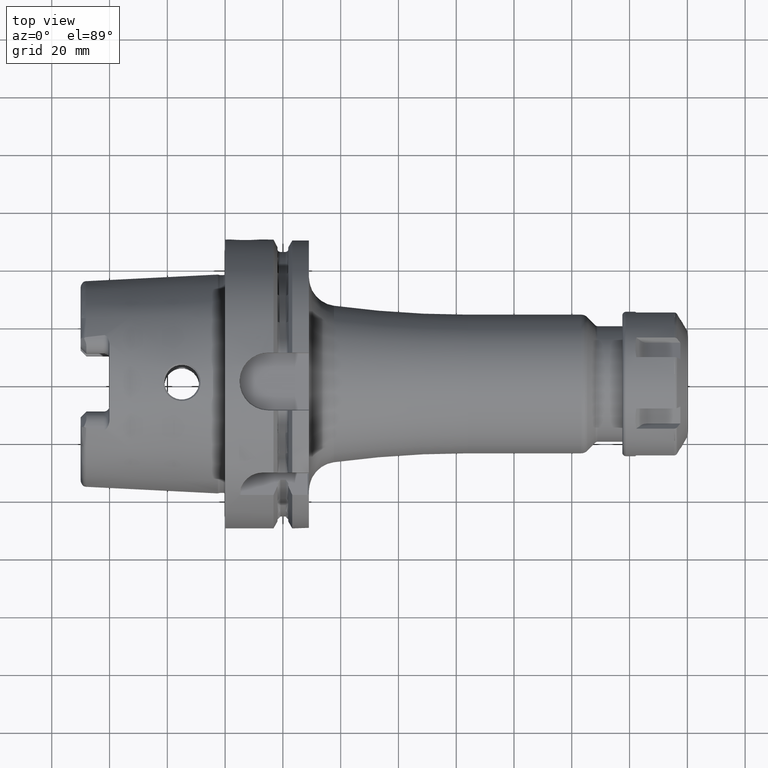
[diagram: clean part render]
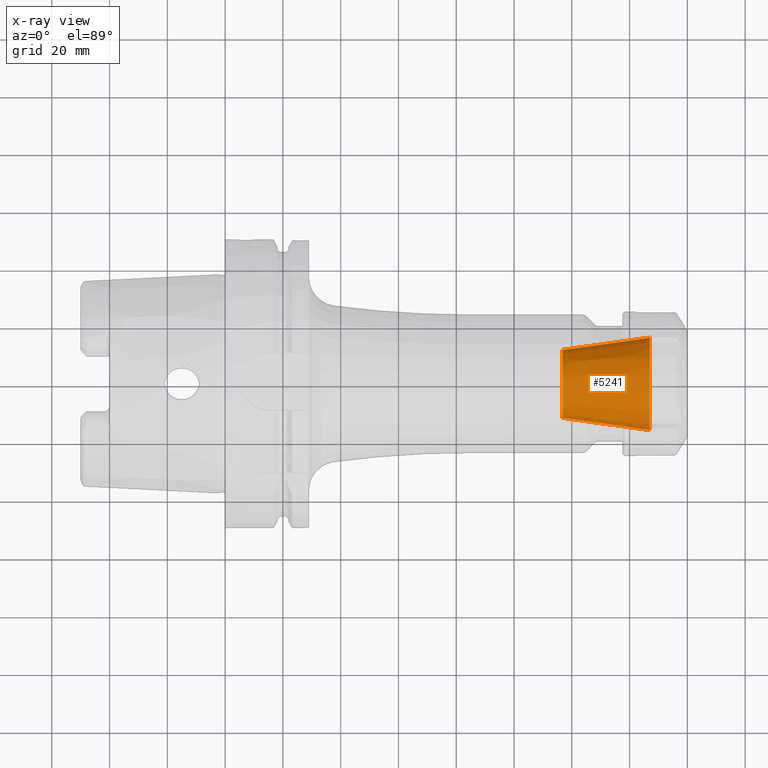
[diagram: x-ray — body ghosted, one internal face saturated and labeled with its STEP entity id]
A machine part, top view, then the same camera in x-ray: the body is ghosted and one INTERNAL B-rep face — a face not visible from any outside direction — is saturated and labeled: STEP entity #5241.
In plain terms, the highlighted conical surface has half-angle 8 deg.
Its self-contained STEP definition (entity closure, byte-faithful):
#1916=CARTESIAN_POINT('',(1.47E2,0.E0,0.E0));
#1917=DIRECTION('',(1.E0,0.E0,0.E0));
#1918=DIRECTION('',(0.E0,1.E0,0.E0));
#1919=AXIS2_PLACEMENT_3D('',#1916,#1917,#1918);
#1926=DIRECTION('',(-9.902680687416E-1,1.391731009601E-1,0.E0));
#1927=VECTOR('',#1926,3.053751027089E1);
#1928=CARTESIAN_POINT('',(1.47E2,-1.6E1,0.E0));
#1929=LINE('',#1928,#1927);
#1930=DIRECTION('',(-9.902680687416E-1,-1.391731009601E-1,0.E0));
#1931=VECTOR('',#1930,3.053751027089E1);
#1932=CARTESIAN_POINT('',(1.47E2,1.6E1,0.E0));
#1933=LINE('',#1932,#1931);
#1947=CARTESIAN_POINT('',(1.167596786799E2,0.E0,0.E0));
#1948=DIRECTION('',(1.E0,0.E0,0.E0));
#1949=DIRECTION('',(0.E0,1.E0,0.E0));
#1950=AXIS2_PLACEMENT_3D('',#1947,#1948,#1949);
#3208=CARTESIAN_POINT('',(1.167596786799E2,1.175E1,0.E0));
#3210=VERTEX_POINT('',#3208);
#3212=CARTESIAN_POINT('',(1.167596786799E2,-1.175E1,0.E0));
#3214=VERTEX_POINT('',#3212);
#3236=CARTESIAN_POINT('',(1.47E2,1.6E1,0.E0));
#3237=CARTESIAN_POINT('',(1.47E2,-1.6E1,0.E0));
#3238=VERTEX_POINT('',#3236);
#3239=VERTEX_POINT('',#3237);
#5227=CARTESIAN_POINT('',(1.318798393399E2,0.E0,0.E0));
#5228=DIRECTION('',(1.E0,0.E0,0.E0));
#5229=DIRECTION('',(0.E0,-1.E0,0.E0));
#5230=AXIS2_PLACEMENT_3D('',#5227,#5228,#5229);
#5231=CONICAL_SURFACE('',#5230,1.3875E1,8.E0);
#5232=ORIENTED_EDGE('',*,*,#5220,.F.);
#5234=ORIENTED_EDGE('',*,*,#5233,.T.);
#5236=ORIENTED_EDGE('',*,*,#5235,.T.);
#5238=ORIENTED_EDGE('',*,*,#5237,.F.);
#5239=EDGE_LOOP('',(#5232,#5234,#5236,#5238));
#5240=FACE_OUTER_BOUND('',#5239,.F.);
#5241=ADVANCED_FACE('',(#5240),#5231,.F.);
#1920=CIRCLE('',#1919,1.6E1);
#1951=CIRCLE('',#1950,1.175E1);
#5220=EDGE_CURVE('',#3238,#3239,#1920,.T.);
#5233=EDGE_CURVE('',#3238,#3210,#1933,.T.);
#5235=EDGE_CURVE('',#3210,#3214,#1951,.T.);
#5237=EDGE_CURVE('',#3239,#3214,#1929,.T.);